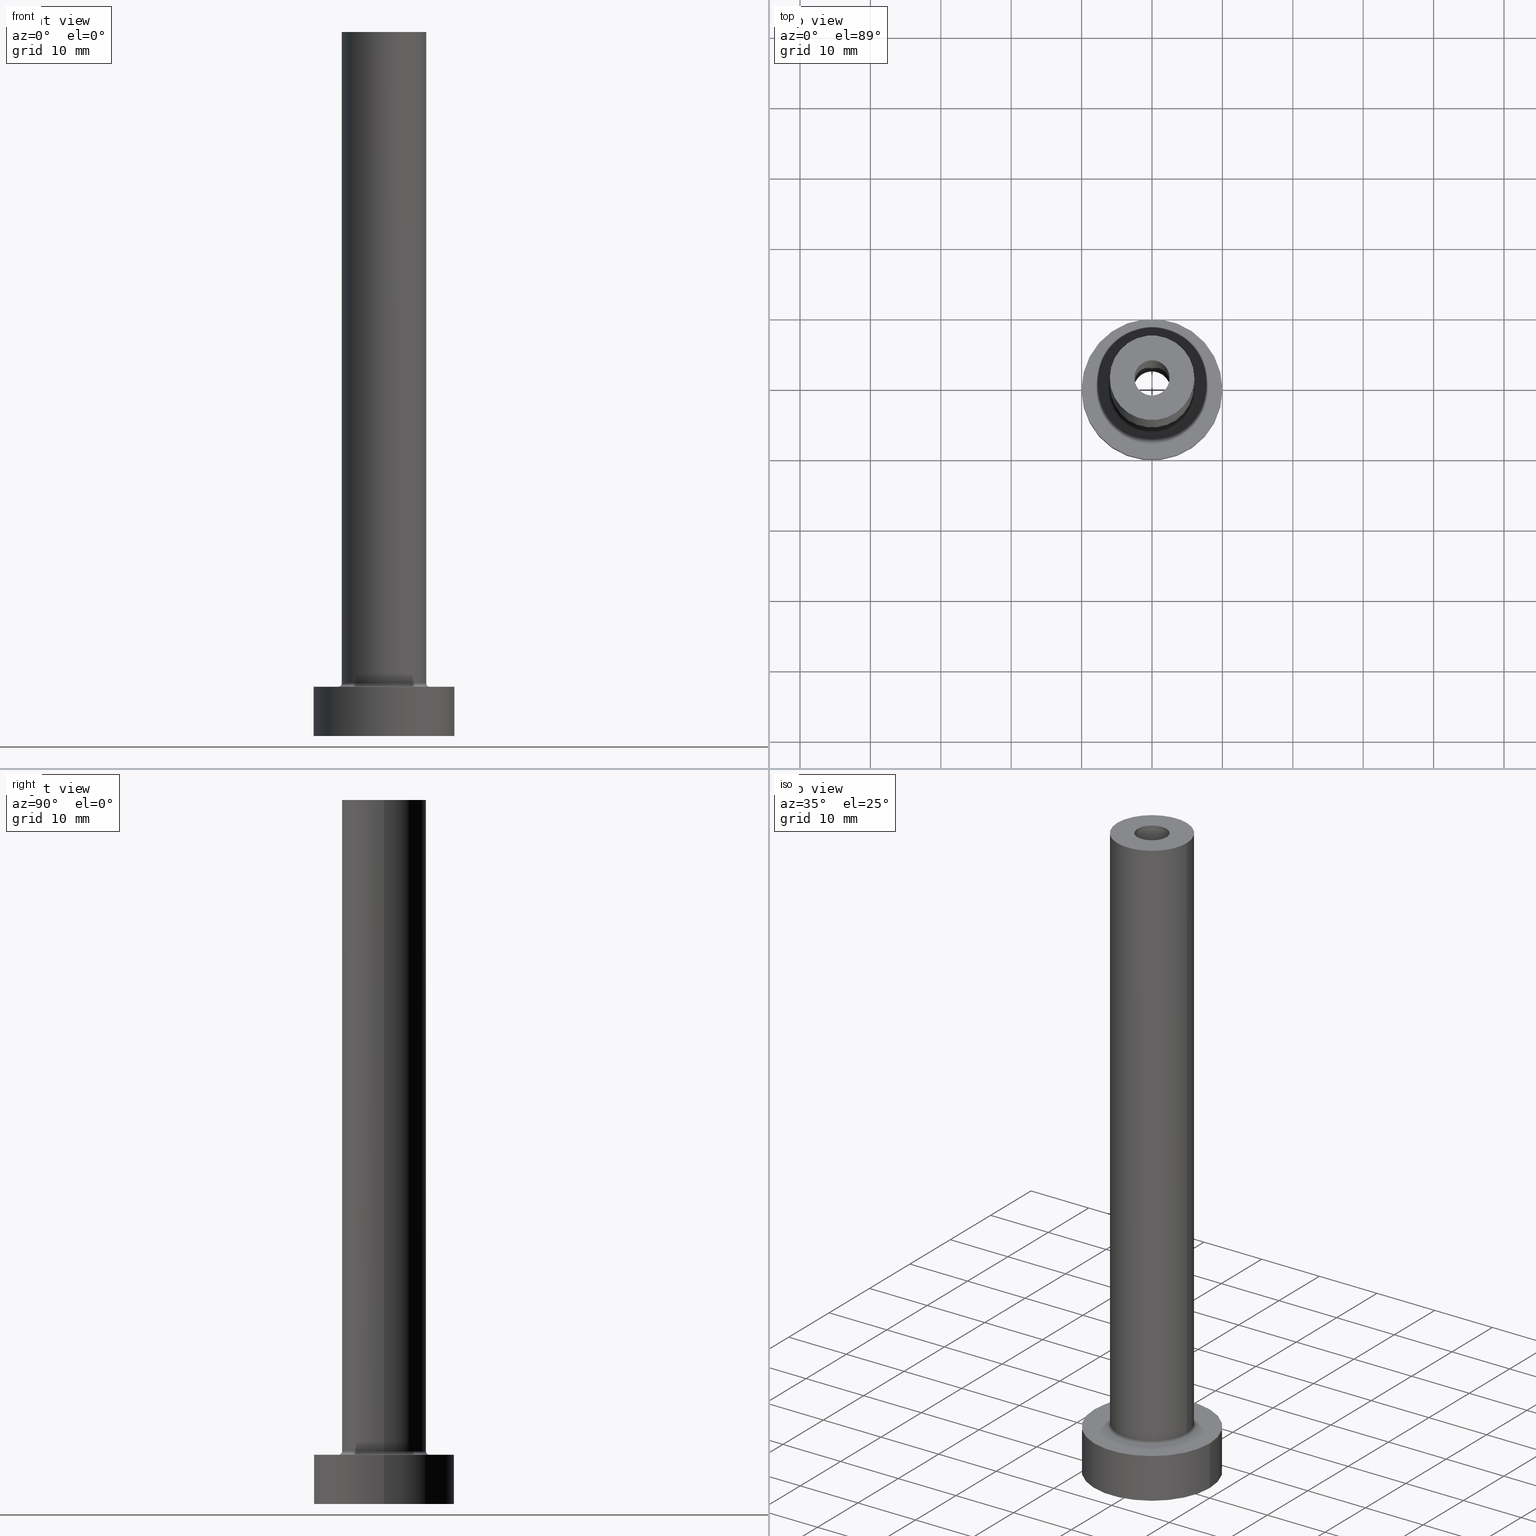
[diagram: canonical four-view strip — front | top / right | iso, engineering-drawing reading convention]
A machine part, canonical four-view strip (front | top / right | iso — engineering-drawing reading convention). The complete STEP part file that produces these views, byte-faithful:
ISO-10303-21;
HEADER;
FILE_DESCRIPTION (( 'STEP AP203' ),
    '1' );
FILE_NAME ('3dc9.STEP',
    '2023-02-13T16:48:22',
    ( '' ),
    ( '' ),
    'SwSTEP 2.0',
    'SolidWorks 2019',
    '' );
FILE_SCHEMA (( 'CONFIG_CONTROL_DESIGN' ));
ENDSEC;

DATA;
#1 = AXIS2_PLACEMENT_3D ( 'NONE', #263, #406, #91 ) ;
#2 = DIRECTION ( 'NONE',  ( -1.000000000000000000, 0.000000000000000000, 0.000000000000000000 ) ) ;
#3 = ORIENTED_EDGE ( 'NONE', *, *, #11, .T. ) ;
#4 = CARTESIAN_POINT ( 'NONE',  ( 0.000000000000000000, 0.000000000000000000, 100.0000000000000000 ) ) ;
#5 = DIRECTION ( 'NONE',  ( 0.000000000000000000, 0.000000000000000000, 1.000000000000000000 ) ) ;
#6 = CARTESIAN_POINT ( 'NONE',  ( 0.000000000000000000, 0.000000000000000000, 100.0000000000000000 ) ) ;
#7 = ORIENTED_EDGE ( 'NONE', *, *, #129, .T. ) ;
#8 = CARTESIAN_POINT ( 'NONE',  ( 0.000000000000000000, 0.000000000000000000, 0.000000000000000000 ) ) ;
#9 = CARTESIAN_POINT ( 'NONE',  ( -2.500000000000000000, 0.000000000000000000, 55.00000000000000711 ) ) ;
#10 = CARTESIAN_POINT ( 'NONE',  ( 2.500000000000000000, 3.061616997868382648E-16, 100.0000000000000000 ) ) ;
#11 = EDGE_CURVE ( 'NONE', #68, #359, #260, .T. ) ;
#12 = DIRECTION ( 'NONE',  ( 0.000000000000000000, 0.000000000000000000, 1.000000000000000000 ) ) ;
#13 = EDGE_LOOP ( 'NONE', ( #177, #167, #115, #7 ) ) ;
#14 = DIRECTION ( 'NONE',  ( -0.000000000000000000, -0.000000000000000000, -1.000000000000000000 ) ) ;
#15 = ORIENTED_EDGE ( 'NONE', *, *, #187, .F. ) ;
#16 = EDGE_LOOP ( 'NONE', ( #15, #282, #206, #173 ) ) ;
#17 = EDGE_LOOP ( 'NONE', ( #355, #279, #275, #370 ) ) ;
#18 = CARTESIAN_POINT ( 'NONE',  ( 0.000000000000000000, 0.000000000000000000, 0.000000000000000000 ) ) ;
#19 = EDGE_LOOP ( 'NONE', ( #138, #133, #394, #75 ) ) ;
#20 = EDGE_LOOP ( 'NONE', ( #212, #117 ) ) ;
#21 = CALENDAR_DATE ( 2023, 13, 2 ) ;
#22 = ORGANIZATION ( 'NEUR�EN�', 'NEUR�EN�', '' ) ;
#23 = PERSON_AND_ORGANIZATION ( #32, #22 ) ;
#24 = CARTESIAN_POINT ( 'NONE',  ( 0.000000000000000000, 0.000000000000000000, 7.000000000000000000 ) ) ;
#25 = APPROVAL ( #335, 'NEUR�EN�' ) ;
#26 = CARTESIAN_POINT ( 'NONE',  ( 0.000000000000000000, 0.000000000000000000, 7.500000000000007105 ) ) ;
#27 = AXIS2_PLACEMENT_3D ( 'NONE', #179, #5, #283 ) ;
#28 = DIRECTION ( 'NONE',  ( 0.000000000000000000, 0.000000000000000000, 1.000000000000000000 ) ) ;
#29 = APPROVAL ( #269, 'NEUR�EN�' ) ;
#30 = CARTESIAN_POINT ( 'NONE',  ( 0.000000000000000000, 0.000000000000000000, 7.000000000000000000 ) ) ;
#31 = APPROVAL_ROLE ( '' ) ;
#32 = PERSON ( 'NEUR�EN�', 'NEUR�EN�', 'NEUR�EN�', ('NEUR�EN�'), ('NEUR�EN�'), ('NEUR�EN�') ) ;
#33 = AXIS2_PLACEMENT_3D ( 'NONE', #46, #428, #258 ) ;
#34 = PRODUCT_DEFINITION_SHAPE ( 'NONE', 'NONE',  #276 ) ;
#35 = ADVANCED_FACE ( 'NONE', ( #104, #363 ), #45, .F. ) ;
#36 = EDGE_LOOP ( 'NONE', ( #111, #253 ) ) ;
#37 = AXIS2_PLACEMENT_3D ( 'NONE', #324, #392, #434 ) ;
#38 = FACE_BOUND ( 'NONE', #316, .T. ) ;
#39 = ORIENTED_EDGE ( 'NONE', *, *, #139, .T. ) ;
#40 = ADVANCED_FACE ( 'NONE', ( #292, #290 ), #242, .T. ) ;
#41 = DIRECTION ( 'NONE',  ( 1.000000000000000000, 0.000000000000000000, 0.000000000000000000 ) ) ;
#42 = EDGE_LOOP ( 'NONE', ( #402, #404 ) ) ;
#43 = CYLINDRICAL_SURFACE ( 'NONE', #168, 2.649999999999999911 ) ;
#44 = LINE ( 'NONE', #109, #377 ) ;
#45 = PLANE ( 'NONE',  #432 ) ;
#46 = CARTESIAN_POINT ( 'NONE',  ( 0.000000000000000000, 0.000000000000000000, 100.0000000000000000 ) ) ;
#47 = AXIS2_PLACEMENT_3D ( 'NONE', #364, #371, #81 ) ;
#48 = CARTESIAN_POINT ( 'NONE',  ( 10.00000000000000000, 1.224646799147353256E-15, 0.000000000000000000 ) ) ;
#49 = VERTEX_POINT ( 'NONE', #9 ) ;
#50 = ORIENTED_EDGE ( 'NONE', *, *, #123, .T. ) ;
#51 = CARTESIAN_POINT ( 'NONE',  ( 10.00000000000000000, 1.224646799147353256E-15, 7.000000000000000000 ) ) ;
#52 = VERTEX_POINT ( 'NONE', #215 ) ;
#53 = EDGE_CURVE ( 'NONE', #121, #387, #427, .T. ) ;
#54 = VERTEX_POINT ( 'NONE', #440 ) ;
#55 = PERSON_AND_ORGANIZATION ( #32, #22 ) ;
#56 = DIRECTION ( 'NONE',  ( 0.000000000000000000, 0.000000000000000000, -1.000000000000000000 ) ) ;
#57 = DATE_AND_TIME ( #145, #71 ) ;
#58 = FACE_OUTER_BOUND ( 'NONE', #218, .T. ) ;
#59 = VECTOR ( 'NONE', #202, 1000.000000000000000 ) ;
#60 = CC_DESIGN_APPROVAL ( #29, ( #190 ) ) ;
#61 = ADVANCED_FACE ( 'NONE', ( #38, #172 ), #435, .T. ) ;
#62 = PERSON_AND_ORGANIZATION ( #32, #22 ) ;
#63 = AXIS2_PLACEMENT_3D ( 'NONE', #26, #154, #268 ) ;
#64 = APPROVAL ( #458, 'NEUR�EN�' ) ;
#65 = AXIS2_PLACEMENT_3D ( 'NONE', #453, #158, #305 ) ;
#66 = CC_DESIGN_PERSON_AND_ORGANIZATION_ASSIGNMENT ( #445, #152, ( #190 ) ) ;
#67 = CIRCLE ( 'NONE', #329, 2.500000000000000000 ) ;
#68 = VERTEX_POINT ( 'NONE', #166 ) ;
#69 = ADVANCED_FACE ( 'NONE', ( #390 ), #319, .T. ) ;
#70 = ORIENTED_EDGE ( 'NONE', *, *, #345, .T. ) ;
#71 = LOCAL_TIME ( 17, 48, 22.00000000000000000, #222 ) ;
#72 =( NAMED_UNIT ( * ) SI_UNIT ( $, .STERADIAN. ) SOLID_ANGLE_UNIT ( ) );
#73 = FACE_BOUND ( 'NONE', #42, .T. ) ;
#74 = DIRECTION ( 'NONE',  ( -0.000000000000000000, -0.000000000000000000, -1.000000000000000000 ) ) ;
#75 = ORIENTED_EDGE ( 'NONE', *, *, #342, .F. ) ;
#76 = CARTESIAN_POINT ( 'NONE',  ( -2.500000000000000000, 0.000000000000000000, 100.0000000000000000 ) ) ;
#77 = DIRECTION ( 'NONE',  ( 1.000000000000000000, 0.000000000000000000, -0.000000000000000000 ) ) ;
#78 = ORIENTED_EDGE ( 'NONE', *, *, #382, .F. ) ;
#79 = ORIENTED_EDGE ( 'NONE', *, *, #160, .F. ) ;
#80 = DIRECTION ( 'NONE',  ( 1.000000000000000000, 0.000000000000000000, -0.000000000000000000 ) ) ;
#81 = DIRECTION ( 'NONE',  ( 1.000000000000000000, 0.000000000000000000, 0.000000000000000000 ) ) ;
#82 = AXIS2_PLACEMENT_3D ( 'NONE', #186, #134, #210 ) ;
#83 = EDGE_CURVE ( 'NONE', #424, #214, #347, .T. ) ;
#84 = EDGE_LOOP ( 'NONE', ( #352, #142 ) ) ;
#85 = PRODUCT_RELATED_PRODUCT_CATEGORY ( 'detail', '', ( #410 ) ) ;
#86 = AXIS2_PLACEMENT_3D ( 'NONE', #30, #94, #234 ) ;
#87 = ORIENTED_EDGE ( 'NONE', *, *, #430, .F. ) ;
#88 = CYLINDRICAL_SURFACE ( 'NONE', #403, 10.00000000000000000 ) ;
#89 = APPROVAL_ROLE ( '' ) ;
#90 = EDGE_CURVE ( 'NONE', #399, #121, #358, .T. ) ;
#91 = DIRECTION ( 'NONE',  ( 1.000000000000000000, 0.000000000000000000, 0.000000000000000000 ) ) ;
#92 = MANIFOLD_SOLID_BREP ( 'Odebrat vysunut�m4', #452 ) ;
#93 = DIRECTION ( 'NONE',  ( 0.000000000000000000, 0.000000000000000000, 1.000000000000000000 ) ) ;
#94 = DIRECTION ( 'NONE',  ( -0.000000000000000000, -0.000000000000000000, -1.000000000000000000 ) ) ;
#95 = CARTESIAN_POINT ( 'NONE',  ( -6.500000000000000888, 7.960204194457796463E-16, 7.500000000000007105 ) ) ;
#96 = AXIS2_PLACEMENT_3D ( 'NONE', #252, #367, #41 ) ;
#97 = DESIGN_CONTEXT ( 'detailed design', #414, 'design' ) ;
#98 = CC_DESIGN_PERSON_AND_ORGANIZATION_ASSIGNMENT ( #55, #189, ( #410 ) ) ;
#99 = CIRCLE ( 'NONE', #200, 6.500000000000000888 ) ;
#100 = DIRECTION ( 'NONE',  ( 1.000000000000000000, 0.000000000000000000, 0.000000000000000000 ) ) ;
#101 = CARTESIAN_POINT ( 'NONE',  ( -2.649999999999999911, 0.000000000000000000, 0.000000000000000000 ) ) ;
#102 = CC_DESIGN_DATE_AND_TIME_ASSIGNMENT ( #227, #122, ( #276 ) ) ;
#103 = ORIENTED_EDGE ( 'NONE', *, *, #455, .F. ) ;
#104 = FACE_BOUND ( 'NONE', #294, .T. ) ;
#105 = ORIENTED_EDGE ( 'NONE', *, *, #90, .T. ) ;
#106 = LOCAL_TIME ( 17, 48, 22.00000000000000000, #221 ) ;
#107 = ORIENTED_EDGE ( 'NONE', *, *, #455, .T. ) ;
#108 = DIRECTION ( 'NONE',  ( 1.000000000000000000, 0.000000000000000000, 0.000000000000000000 ) ) ;
#109 = CARTESIAN_POINT ( 'NONE',  ( 2.500000000000000000, 3.061616997868382648E-16, 100.0000000000000000 ) ) ;
#110 = AXIS2_PLACEMENT_3D ( 'NONE', #398, #12, #181 ) ;
#111 = ORIENTED_EDGE ( 'NONE', *, *, #309, .F. ) ;
#112 = CARTESIAN_POINT ( 'NONE',  ( -6.500000000000000888, 7.960204194457796463E-16, 7.000000000000002665 ) ) ;
#113 = ORIENTED_EDGE ( 'NONE', *, *, #187, .T. ) ;
#114 = CC_DESIGN_DATE_AND_TIME_ASSIGNMENT ( #380, #195, ( #315 ) ) ;
#115 = ORIENTED_EDGE ( 'NONE', *, *, #342, .T. ) ;
#116 = FACE_OUTER_BOUND ( 'NONE', #164, .T. ) ;
#117 = ORIENTED_EDGE ( 'NONE', *, *, #196, .T. ) ;
#118 = ORIENTED_EDGE ( 'NONE', *, *, #157, .F. ) ;
#119 = CARTESIAN_POINT ( 'NONE',  ( -6.000000000000000888, 0.000000000000000000, 7.500000000000007105 ) ) ;
#120 = AXIS2_PLACEMENT_3D ( 'NONE', #265, #375, #144 ) ;
#121 = VERTEX_POINT ( 'NONE', #362 ) ;
#122 = DATE_TIME_ROLE ( 'creation_date' ) ;
#123 = EDGE_CURVE ( 'NONE', #426, #52, #44, .T. ) ;
#124 = SECURITY_CLASSIFICATION_LEVEL ( 'unclassified' ) ;
#125 = DIRECTION ( 'NONE',  ( 0.000000000000000000, 0.000000000000000000, -1.000000000000000000 ) ) ;
#126 = CIRCLE ( 'NONE', #120, 10.00000000000000000 ) ;
#127 = EDGE_CURVE ( 'NONE', #391, #255, #327, .T. ) ;
#128 = CARTESIAN_POINT ( 'NONE',  ( 0.000000000000000000, 0.000000000000000000, 0.000000000000000000 ) ) ;
#129 = EDGE_CURVE ( 'NONE', #286, #54, #318, .T. ) ;
#130 = ORIENTED_EDGE ( 'NONE', *, *, #180, .F. ) ;
#131 = DIRECTION ( 'NONE',  ( 0.000000000000000000, 0.000000000000000000, 1.000000000000000000 ) ) ;
#132 = ORIENTED_EDGE ( 'NONE', *, *, #298, .T. ) ;
#133 = ORIENTED_EDGE ( 'NONE', *, *, #317, .T. ) ;
#134 = DIRECTION ( 'NONE',  ( 0.000000000000000000, 0.000000000000000000, -1.000000000000000000 ) ) ;
#135 = AXIS2_PLACEMENT_3D ( 'NONE', #128, #419, #308 ) ;
#136 = ORIENTED_EDGE ( 'NONE', *, *, #129, .F. ) ;
#137 = CARTESIAN_POINT ( 'NONE',  ( -10.00000000000000000, 0.000000000000000000, 7.000000000000000000 ) ) ;
#138 = ORIENTED_EDGE ( 'NONE', *, *, #284, .T. ) ;
#139 = EDGE_CURVE ( 'NONE', #442, #359, #201, .T. ) ;
#140 = DIRECTION ( 'NONE',  ( 0.000000000000000000, 0.000000000000000000, 1.000000000000000000 ) ) ;
#141 = FACE_OUTER_BOUND ( 'NONE', #400, .T. ) ;
#142 = ORIENTED_EDGE ( 'NONE', *, *, #83, .F. ) ;
#143 = CARTESIAN_POINT ( 'NONE',  ( 6.500000000000000888, 0.000000000000000000, 7.500000000000007105 ) ) ;
#144 = DIRECTION ( 'NONE',  ( 1.000000000000000000, 0.000000000000000000, 0.000000000000000000 ) ) ;
#145 = CALENDAR_DATE ( 2023, 13, 2 ) ;
#146 = EDGE_CURVE ( 'NONE', #387, #442, #171, .T. ) ;
#147 = CIRCLE ( 'NONE', #449, 6.000000000000000888 ) ;
#148 = APPROVAL_ROLE ( '' ) ;
#149 = MECHANICAL_CONTEXT ( 'NONE', #385, 'mechanical' ) ;
#150 = CALENDAR_DATE ( 2023, 13, 2 ) ;
#151 = DIRECTION ( 'NONE',  ( 0.000000000000000000, 0.000000000000000000, -1.000000000000000000 ) ) ;
#152 = PERSON_AND_ORGANIZATION_ROLE ( 'design_supplier' ) ;
#153 = DIRECTION ( 'NONE',  ( -0.000000000000000000, -0.000000000000000000, -1.000000000000000000 ) ) ;
#154 = DIRECTION ( 'NONE',  ( 0.000000000000000000, 0.000000000000000000, 1.000000000000000000 ) ) ;
#155 = FACE_OUTER_BOUND ( 'NONE', #84, .T. ) ;
#156 = AXIS2_PLACEMENT_3D ( 'NONE', #8, #239, #241 ) ;
#157 = EDGE_CURVE ( 'NONE', #426, #174, #67, .T. ) ;
#158 = DIRECTION ( 'NONE',  ( 0.000000000000000000, 0.000000000000000000, 1.000000000000000000 ) ) ;
#159 = SHAPE_DEFINITION_REPRESENTATION ( #34, #162 ) ;
#160 = EDGE_CURVE ( 'NONE', #174, #426, #379, .T. ) ;
#161 = AXIS2_PLACEMENT_3D ( 'NONE', #4, #131, #312 ) ;
#162 = ADVANCED_BREP_SHAPE_REPRESENTATION ( '3dc9', ( #92, #1 ), #416 ) ;
#163 = AXIS2_PLACEMENT_3D ( 'NONE', #437, #321, #80 ) ;
#164 = EDGE_LOOP ( 'NONE', ( #460, #236, #285, #130 ) ) ;
#165 = DIRECTION ( 'NONE',  ( 1.000000000000000000, 0.000000000000000000, 0.000000000000000000 ) ) ;
#166 = CARTESIAN_POINT ( 'NONE',  ( 6.000000000000000888, 7.347880794884119736E-16, 7.500000000000007105 ) ) ;
#167 = ORIENTED_EDGE ( 'NONE', *, *, #83, .T. ) ;
#168 = AXIS2_PLACEMENT_3D ( 'NONE', #176, #170, #2 ) ;
#169 = ADVANCED_FACE ( 'NONE', ( #313 ), #43, .F. ) ;
#170 = DIRECTION ( 'NONE',  ( 0.000000000000000000, 0.000000000000000000, -1.000000000000000000 ) ) ;
#171 = CIRCLE ( 'NONE', #348, 0.5000000000000004441 ) ;
#172 = FACE_OUTER_BOUND ( 'NONE', #333, .T. ) ;
#173 = ORIENTED_EDGE ( 'NONE', *, *, #328, .T. ) ;
#174 = VERTEX_POINT ( 'NONE', #393 ) ;
#175 = FACE_OUTER_BOUND ( 'NONE', #16, .T. ) ;
#176 = CARTESIAN_POINT ( 'NONE',  ( 0.000000000000000000, 0.000000000000000000, 62.49533188057741739 ) ) ;
#177 = ORIENTED_EDGE ( 'NONE', *, *, #317, .F. ) ;
#178 = CARTESIAN_POINT ( 'NONE',  ( 6.000000000000000888, 7.347880794884119736E-16, 100.0000000000000000 ) ) ;
#179 = CARTESIAN_POINT ( 'NONE',  ( 0.000000000000000000, 0.000000000000000000, 55.00000000000000711 ) ) ;
#180 = EDGE_CURVE ( 'NONE', #52, #49, #443, .T. ) ;
#181 = DIRECTION ( 'NONE',  ( 1.000000000000000000, 0.000000000000000000, 0.000000000000000000 ) ) ;
#182 = EDGE_LOOP ( 'NONE', ( #360, #396, #3, #240 ) ) ;
#183 = AXIS2_PLACEMENT_3D ( 'NONE', #350, #246, #165 ) ;
#184 = CARTESIAN_POINT ( 'NONE',  ( -2.649999999999999911, 0.000000000000000000, 55.00000000000000711 ) ) ;
#185 = CARTESIAN_POINT ( 'NONE',  ( -6.000000000000000888, 0.000000000000000000, 100.0000000000000000 ) ) ;
#186 = CARTESIAN_POINT ( 'NONE',  ( 0.000000000000000000, 0.000000000000000000, 62.49533188057741739 ) ) ;
#187 = EDGE_CURVE ( 'NONE', #399, #68, #425, .T. ) ;
#188 = ORIENTED_EDGE ( 'NONE', *, *, #373, .F. ) ;
#189 = PERSON_AND_ORGANIZATION_ROLE ( 'design_owner' ) ;
#190 = PRODUCT_DEFINITION_FORMATION_WITH_SPECIFIED_SOURCE ( 'LIBOVOLN�', '', #410, .NOT_KNOWN. ) ;
#191 = CYLINDRICAL_SURFACE ( 'NONE', #230, 10.00000000000000000 ) ;
#192 = DIRECTION ( 'NONE',  ( -0.000000000000000000, -0.000000000000000000, -1.000000000000000000 ) ) ;
#193 = CC_DESIGN_PERSON_AND_ORGANIZATION_ASSIGNMENT ( #299, #447, ( #315 ) ) ;
#194 = CIRCLE ( 'NONE', #156, 10.00000000000000000 ) ;
#195 = DATE_TIME_ROLE ( 'classification_date' ) ;
#196 = EDGE_CURVE ( 'NONE', #433, #391, #126, .T. ) ;
#197 = CARTESIAN_POINT ( 'NONE',  ( 0.000000000000000000, 0.000000000000000000, 100.0000000000000000 ) ) ;
#198 = CARTESIAN_POINT ( 'NONE',  ( 0.000000000000000000, 0.000000000000000000, 55.00000000000000711 ) ) ;
#199 = UNCERTAINTY_MEASURE_WITH_UNIT (LENGTH_MEASURE( 1.000000000000000082E-05 ), #361, 'distance_accuracy_value', 'NONE');
#200 = AXIS2_PLACEMENT_3D ( 'NONE', #346, #237, #311 ) ;
#201 = CIRCLE ( 'NONE', #86, 6.500000000000000888 ) ;
#202 = DIRECTION ( 'NONE',  ( 0.000000000000000000, 0.000000000000000000, -1.000000000000000000 ) ) ;
#203 = ADVANCED_FACE ( 'NONE', ( #58 ), #191, .T. ) ;
#204 = CARTESIAN_POINT ( 'NONE',  ( 0.000000000000000000, 0.000000000000000000, 100.0000000000000000 ) ) ;
#205 = ORIENTED_EDGE ( 'NONE', *, *, #127, .F. ) ;
#206 = ORIENTED_EDGE ( 'NONE', *, *, #53, .T. ) ;
#207 = DIRECTION ( 'NONE',  ( -1.000000000000000000, 0.000000000000000000, 0.000000000000000000 ) ) ;
#208 = ADVANCED_FACE ( 'NONE', ( #116 ), #213, .F. ) ;
#209 = VERTEX_POINT ( 'NONE', #48 ) ;
#210 = DIRECTION ( 'NONE',  ( -1.000000000000000000, 0.000000000000000000, 0.000000000000000000 ) ) ;
#211 = LINE ( 'NONE', #251, #59 ) ;
#212 = ORIENTED_EDGE ( 'NONE', *, *, #382, .T. ) ;
#213 = CYLINDRICAL_SURFACE ( 'NONE', #288, 2.500000000000000000 ) ;
#214 = VERTEX_POINT ( 'NONE', #184 ) ;
#215 = CARTESIAN_POINT ( 'NONE',  ( 2.500000000000000000, 3.061616997868382648E-16, 55.00000000000000711 ) ) ;
#216 = LINE ( 'NONE', #331, #277 ) ;
#217 = CYLINDRICAL_SURFACE ( 'NONE', #429, 2.500000000000000000 ) ;
#218 = EDGE_LOOP ( 'NONE', ( #368, #107, #436, #205 ) ) ;
#219 = APPLICATION_PROTOCOL_DEFINITION ( 'international standard', 'config_control_design', 1994, #385 ) ;
#220 = CARTESIAN_POINT ( 'NONE',  ( 0.000000000000000000, 0.000000000000000000, 7.000000000000000000 ) ) ;
#221 = COORDINATED_UNIVERSAL_TIME_OFFSET ( 1, 0, .AHEAD. ) ;
#222 = COORDINATED_UNIVERSAL_TIME_OFFSET ( 1, 0, .AHEAD. ) ;
#223 = PERSON_AND_ORGANIZATION_ROLE ( 'creator' ) ;
#224 = DIRECTION ( 'NONE',  ( -0.000000000000000000, -0.000000000000000000, -1.000000000000000000 ) ) ;
#225 = TOROIDAL_SURFACE ( 'NONE', #369, 6.500000000000000888, 0.5000000000000000000 ) ;
#226 = LOCAL_TIME ( 17, 48, 22.00000000000000000, #417 ) ;
#227 = DATE_AND_TIME ( #150, #270 ) ;
#228 = ADVANCED_FACE ( 'NONE', ( #141 ), #217, .F. ) ;
#229 = DIRECTION ( 'NONE',  ( 1.000000000000000000, 0.000000000000000000, 0.000000000000000000 ) ) ;
#230 = AXIS2_PLACEMENT_3D ( 'NONE', #24, #153, #300 ) ;
#231 = DIRECTION ( 'NONE',  ( -1.000000000000000000, 1.224646799147351482E-16, 0.000000000000000000 ) ) ;
#232 = APPROVAL_DATE_TIME ( #306, #64 ) ;
#233 = ADVANCED_FACE ( 'NONE', ( #431 ), #336, .F. ) ;
#234 = DIRECTION ( 'NONE',  ( 1.000000000000000000, 0.000000000000000000, 0.000000000000000000 ) ) ;
#235 = CIRCLE ( 'NONE', #47, 6.000000000000000888 ) ;
#236 = ORIENTED_EDGE ( 'NONE', *, *, #157, .T. ) ;
#237 = DIRECTION ( 'NONE',  ( -0.000000000000000000, -0.000000000000000000, -1.000000000000000000 ) ) ;
#238 = ADVANCED_FACE ( 'NONE', ( #446 ), #225, .F. ) ;
#239 = DIRECTION ( 'NONE',  ( 0.000000000000000000, 0.000000000000000000, 1.000000000000000000 ) ) ;
#240 = ORIENTED_EDGE ( 'NONE', *, *, #139, .F. ) ;
#241 = DIRECTION ( 'NONE',  ( 1.000000000000000000, 0.000000000000000000, 0.000000000000000000 ) ) ;
#242 = PLANE ( 'NONE',  #163 ) ;
#243 = DIRECTION ( 'NONE',  ( -1.000000000000000000, 0.000000000000000000, 0.000000000000000000 ) ) ;
#244 = AXIS2_PLACEMENT_3D ( 'NONE', #198, #301, #456 ) ;
#245 = DIRECTION ( 'NONE',  ( -0.000000000000000000, -0.000000000000000000, -1.000000000000000000 ) ) ;
#246 = DIRECTION ( 'NONE',  ( 0.000000000000000000, 0.000000000000000000, 1.000000000000000000 ) ) ;
#247 = VECTOR ( 'NONE', #245, 1000.000000000000000 ) ;
#248 = CARTESIAN_POINT ( 'NONE',  ( -10.00000000000000000, 0.000000000000000000, 7.000000000000000000 ) ) ;
#249 = ORIENTED_EDGE ( 'NONE', *, *, #127, .T. ) ;
#250 = FACE_OUTER_BOUND ( 'NONE', #13, .T. ) ;
#251 = CARTESIAN_POINT ( 'NONE',  ( -2.649999999999999911, 0.000000000000000000, 62.49533188057741739 ) ) ;
#252 = CARTESIAN_POINT ( 'NONE',  ( 0.000000000000000000, 0.000000000000000000, 55.00000000000000711 ) ) ;
#253 = ORIENTED_EDGE ( 'NONE', *, *, #266, .F. ) ;
#254 =( NAMED_UNIT ( * ) PLANE_ANGLE_UNIT ( ) SI_UNIT ( $, .RADIAN. ) );
#255 = VERTEX_POINT ( 'NONE', #413 ) ;
#256 = CIRCLE ( 'NONE', #383, 10.00000000000000000 ) ;
#257 = ORIENTED_EDGE ( 'NONE', *, *, #53, .F. ) ;
#258 = DIRECTION ( 'NONE',  ( -1.000000000000000000, 0.000000000000000000, 0.000000000000000000 ) ) ;
#259 = CC_DESIGN_PERSON_AND_ORGANIZATION_ASSIGNMENT ( #407, #338, ( #276 ) ) ;
#260 = CIRCLE ( 'NONE', #459, 0.5000000000000004441 ) ;
#261 = PERSON_AND_ORGANIZATION ( #32, #22 ) ;
#262 = CARTESIAN_POINT ( 'NONE',  ( 6.000000000000000888, 7.347880794884119736E-16, 100.0000000000000000 ) ) ;
#263 = CARTESIAN_POINT ( 'NONE',  ( 0.000000000000000000, 0.000000000000000000, 0.000000000000000000 ) ) ;
#264 = COORDINATED_UNIVERSAL_TIME_OFFSET ( 1, 0, .AHEAD. ) ;
#265 = CARTESIAN_POINT ( 'NONE',  ( 0.000000000000000000, 0.000000000000000000, 7.000000000000000000 ) ) ;
#266 = EDGE_CURVE ( 'NONE', #209, #255, #256, .T. ) ;
#267 = CIRCLE ( 'NONE', #65, 2.649999999999999911 ) ;
#268 = DIRECTION ( 'NONE',  ( 1.000000000000000000, 0.000000000000000000, 0.000000000000000000 ) ) ;
#269 = APPROVAL_STATUS ( 'not_yet_approved' ) ;
#270 = LOCAL_TIME ( 17, 48, 22.00000000000000000, #264 ) ;
#271 = APPROVAL_PERSON_ORGANIZATION ( #261, #25, #89 ) ;
#272 = PERSON_AND_ORGANIZATION ( #32, #22 ) ;
#273 = CARTESIAN_POINT ( 'NONE',  ( 0.000000000000000000, 0.000000000000000000, 7.000000000000000000 ) ) ;
#274 = DIRECTION ( 'NONE',  ( -1.000000000000000000, 0.000000000000000000, 0.000000000000000000 ) ) ;
#275 = ORIENTED_EDGE ( 'NONE', *, *, #298, .F. ) ;
#276 = PRODUCT_DEFINITION ( 'NEZN�M�', '', #190, #97 ) ;
#277 = VECTOR ( 'NONE', #293, 1000.000000000000000 ) ;
#278 = CARTESIAN_POINT ( 'NONE',  ( 0.000000000000000000, 0.000000000000000000, 0.000000000000000000 ) ) ;
#279 = ORIENTED_EDGE ( 'NONE', *, *, #146, .T. ) ;
#280 = VECTOR ( 'NONE', #14, 1000.000000000000000 ) ;
#281 = CARTESIAN_POINT ( 'NONE',  ( 6.500000000000000888, 0.000000000000000000, 7.000000000000002665 ) ) ;
#282 = ORIENTED_EDGE ( 'NONE', *, *, #345, .F. ) ;
#283 = DIRECTION ( 'NONE',  ( 1.000000000000000000, 0.000000000000000000, 0.000000000000000000 ) ) ;
#284 = EDGE_CURVE ( 'NONE', #214, #424, #267, .T. ) ;
#285 = ORIENTED_EDGE ( 'NONE', *, *, #423, .T. ) ;
#286 = VERTEX_POINT ( 'NONE', #101 ) ;
#287 = DIRECTION ( 'NONE',  ( -0.000000000000000000, -0.000000000000000000, -1.000000000000000000 ) ) ;
#288 = AXIS2_PLACEMENT_3D ( 'NONE', #448, #125, #365 ) ;
#289 = APPROVAL_PERSON_ORGANIZATION ( #272, #64, #31 ) ;
#290 = FACE_OUTER_BOUND ( 'NONE', #20, .T. ) ;
#291 = EDGE_LOOP ( 'NONE', ( #323, #113, #349, #257 ) ) ;
#292 = FACE_BOUND ( 'NONE', #334, .T. ) ;
#293 = DIRECTION ( 'NONE',  ( -0.000000000000000000, -0.000000000000000000, -1.000000000000000000 ) ) ;
#294 = EDGE_LOOP ( 'NONE', ( #136, #188 ) ) ;
#295 = DIRECTION ( 'NONE',  ( 0.000000000000000000, -1.000000000000000000, 0.000000000000000000 ) ) ;
#296 = APPROVAL_DATE_TIME ( #303, #29 ) ;
#297 = AXIS2_PLACEMENT_3D ( 'NONE', #204, #351, #77 ) ;
#298 = EDGE_CURVE ( 'NONE', #359, #442, #99, .T. ) ;
#299 = PERSON_AND_ORGANIZATION ( #32, #22 ) ;
#300 = DIRECTION ( 'NONE',  ( -1.000000000000000000, 0.000000000000000000, 0.000000000000000000 ) ) ;
#301 = DIRECTION ( 'NONE',  ( 0.000000000000000000, 0.000000000000000000, 1.000000000000000000 ) ) ;
#302 = VECTOR ( 'NONE', #322, 1000.000000000000000 ) ;
#303 = DATE_AND_TIME ( #21, #106 ) ;
#304 = AXIS2_PLACEMENT_3D ( 'NONE', #6, #74, #207 ) ;
#305 = DIRECTION ( 'NONE',  ( 1.000000000000000000, 0.000000000000000000, 0.000000000000000000 ) ) ;
#306 = DATE_AND_TIME ( #454, #226 ) ;
#307 = CC_DESIGN_SECURITY_CLASSIFICATION ( #315, ( #190 ) ) ;
#308 = DIRECTION ( 'NONE',  ( 1.000000000000000000, 0.000000000000000000, 0.000000000000000000 ) ) ;
#309 = EDGE_CURVE ( 'NONE', #255, #209, #194, .T. ) ;
#310 = ORIENTED_EDGE ( 'NONE', *, *, #309, .T. ) ;
#311 = DIRECTION ( 'NONE',  ( 1.000000000000000000, 0.000000000000000000, 0.000000000000000000 ) ) ;
#312 = DIRECTION ( 'NONE',  ( 1.000000000000000000, 0.000000000000000000, 0.000000000000000000 ) ) ;
#313 = FACE_OUTER_BOUND ( 'NONE', #19, .T. ) ;
#314 = VECTOR ( 'NONE', #224, 1000.000000000000000 ) ;
#315 = SECURITY_CLASSIFICATION ( '', '', #124 ) ;
#316 = EDGE_LOOP ( 'NONE', ( #79, #118 ) ) ;
#317 = EDGE_CURVE ( 'NONE', #424, #54, #420, .T. ) ;
#318 = CIRCLE ( 'NONE', #412, 2.649999999999999911 ) ;
#319 = CYLINDRICAL_SURFACE ( 'NONE', #304, 6.000000000000000888 ) ;
#320 = EDGE_LOOP ( 'NONE', ( #103, #78, #249, #310 ) ) ;
#321 = DIRECTION ( 'NONE',  ( 0.000000000000000000, 0.000000000000000000, 1.000000000000000000 ) ) ;
#322 = DIRECTION ( 'NONE',  ( 0.000000000000000000, 0.000000000000000000, -1.000000000000000000 ) ) ;
#323 = ORIENTED_EDGE ( 'NONE', *, *, #90, .F. ) ;
#324 = CARTESIAN_POINT ( 'NONE',  ( 0.000000000000000000, 0.000000000000000000, 55.00000000000000711 ) ) ;
#325 = DIRECTION ( 'NONE',  ( 0.000000000000000000, 0.000000000000000000, -1.000000000000000000 ) ) ;
#326 = CIRCLE ( 'NONE', #422, 10.00000000000000000 ) ;
#327 = LINE ( 'NONE', #248, #280 ) ;
#328 = EDGE_CURVE ( 'NONE', #387, #68, #147, .T. ) ;
#329 = AXIS2_PLACEMENT_3D ( 'NONE', #197, #343, #108 ) ;
#330 = DIRECTION ( 'NONE',  ( 0.000000000000000000, 0.000000000000000000, -1.000000000000000000 ) ) ;
#331 = CARTESIAN_POINT ( 'NONE',  ( 10.00000000000000000, 1.224646799147353256E-15, 7.000000000000000000 ) ) ;
#332 = CARTESIAN_POINT ( 'NONE',  ( 0.000000000000000000, 0.000000000000000000, 100.0000000000000000 ) ) ;
#333 = EDGE_LOOP ( 'NONE', ( #70, #105 ) ) ;
#334 = EDGE_LOOP ( 'NONE', ( #132, #39 ) ) ;
#335 = APPROVAL_STATUS ( 'not_yet_approved' ) ;
#336 = TOROIDAL_SURFACE ( 'NONE', #63, 6.500000000000000888, 0.5000000000000000000 ) ;
#337 = CC_DESIGN_PERSON_AND_ORGANIZATION_ASSIGNMENT ( #62, #223, ( #190 ) ) ;
#338 = PERSON_AND_ORGANIZATION_ROLE ( 'creator' ) ;
#339 = DIRECTION ( 'NONE',  ( 1.000000000000000000, 0.000000000000000000, 0.000000000000000000 ) ) ;
#340 = CIRCLE ( 'NONE', #161, 6.000000000000000888 ) ;
#341 = CARTESIAN_POINT ( 'NONE',  ( 0.000000000000000000, 0.000000000000000000, 0.000000000000000000 ) ) ;
#342 = EDGE_CURVE ( 'NONE', #214, #286, #211, .T. ) ;
#343 = DIRECTION ( 'NONE',  ( 0.000000000000000000, 0.000000000000000000, 1.000000000000000000 ) ) ;
#344 = CIRCLE ( 'NONE', #135, 2.649999999999999911 ) ;
#345 = EDGE_CURVE ( 'NONE', #121, #399, #340, .T. ) ;
#346 = CARTESIAN_POINT ( 'NONE',  ( 0.000000000000000000, 0.000000000000000000, 7.000000000000000000 ) ) ;
#347 = CIRCLE ( 'NONE', #96, 2.649999999999999911 ) ;
#348 = AXIS2_PLACEMENT_3D ( 'NONE', #95, #381, #231 ) ;
#349 = ORIENTED_EDGE ( 'NONE', *, *, #395, .T. ) ;
#350 = CARTESIAN_POINT ( 'NONE',  ( 0.000000000000000000, 0.000000000000000000, 100.0000000000000000 ) ) ;
#351 = DIRECTION ( 'NONE',  ( 0.000000000000000000, 0.000000000000000000, 1.000000000000000000 ) ) ;
#352 = ORIENTED_EDGE ( 'NONE', *, *, #284, .F. ) ;
#353 = CIRCLE ( 'NONE', #37, 2.500000000000000000 ) ;
#354 = LOCAL_TIME ( 17, 48, 22.00000000000000000, #411 ) ;
#355 = ORIENTED_EDGE ( 'NONE', *, *, #328, .F. ) ;
#356 = DIRECTION ( 'NONE',  ( 1.000000000000000000, 0.000000000000000000, -0.000000000000000000 ) ) ;
#357 = CARTESIAN_POINT ( 'NONE',  ( 2.649999999999999911, 3.245314017740485962E-16, 55.00000000000000711 ) ) ;
#358 = CIRCLE ( 'NONE', #110, 6.000000000000000888 ) ;
#359 = VERTEX_POINT ( 'NONE', #281 ) ;
#360 = ORIENTED_EDGE ( 'NONE', *, *, #146, .F. ) ;
#361 =( LENGTH_UNIT ( ) NAMED_UNIT ( * ) SI_UNIT ( .MILLI., .METRE. ) );
#362 = CARTESIAN_POINT ( 'NONE',  ( -6.000000000000000888, 0.000000000000000000, 100.0000000000000000 ) ) ;
#363 = FACE_OUTER_BOUND ( 'NONE', #36, .T. ) ;
#364 = CARTESIAN_POINT ( 'NONE',  ( 0.000000000000000000, 0.000000000000000000, 7.500000000000007105 ) ) ;
#365 = DIRECTION ( 'NONE',  ( -1.000000000000000000, 0.000000000000000000, 0.000000000000000000 ) ) ;
#366 = ADVANCED_FACE ( 'NONE', ( #73, #155 ), #384, .F. ) ;
#367 = DIRECTION ( 'NONE',  ( 0.000000000000000000, 0.000000000000000000, 1.000000000000000000 ) ) ;
#368 = ORIENTED_EDGE ( 'NONE', *, *, #196, .F. ) ;
#369 = AXIS2_PLACEMENT_3D ( 'NONE', #450, #93, #229 ) ;
#370 = ORIENTED_EDGE ( 'NONE', *, *, #11, .F. ) ;
#371 = DIRECTION ( 'NONE',  ( 0.000000000000000000, 0.000000000000000000, 1.000000000000000000 ) ) ;
#372 = ORIENTED_EDGE ( 'NONE', *, *, #160, .T. ) ;
#373 = EDGE_CURVE ( 'NONE', #54, #286, #344, .T. ) ;
#374 = APPLICATION_PROTOCOL_DEFINITION ( 'international standard', 'config_control_design', 1994, #414 ) ;
#375 = DIRECTION ( 'NONE',  ( 0.000000000000000000, 0.000000000000000000, 1.000000000000000000 ) ) ;
#376 = CARTESIAN_POINT ( 'NONE',  ( 2.649999999999999911, 3.245314017740485962E-16, 62.49533188057741739 ) ) ;
#377 = VECTOR ( 'NONE', #325, 1000.000000000000000 ) ;
#378 = DIRECTION ( 'NONE',  ( 1.000000000000000000, 0.000000000000000000, 0.000000000000000000 ) ) ;
#379 = CIRCLE ( 'NONE', #183, 2.500000000000000000 ) ;
#380 = DATE_AND_TIME ( #415, #354 ) ;
#381 = DIRECTION ( 'NONE',  ( 1.224646799147353207E-16, 1.000000000000000000, -0.000000000000000000 ) ) ;
#382 = EDGE_CURVE ( 'NONE', #391, #433, #326, .T. ) ;
#383 = AXIS2_PLACEMENT_3D ( 'NONE', #341, #28, #378 ) ;
#384 = PLANE ( 'NONE',  #244 ) ;
#385 = APPLICATION_CONTEXT ( 'configuration controlled 3d designs of mechanical parts and assemblies' ) ;
#386 = DIRECTION ( 'NONE',  ( 0.000000000000000000, 0.000000000000000000, 1.000000000000000000 ) ) ;
#387 = VERTEX_POINT ( 'NONE', #119 ) ;
#388 = CARTESIAN_POINT ( 'NONE',  ( 0.000000000000000000, 0.000000000000000000, 7.500000000000007105 ) ) ;
#389 = CC_DESIGN_APPROVAL ( #25, ( #276 ) ) ;
#390 = FACE_OUTER_BOUND ( 'NONE', #291, .T. ) ;
#391 = VERTEX_POINT ( 'NONE', #137 ) ;
#392 = DIRECTION ( 'NONE',  ( 0.000000000000000000, 0.000000000000000000, 1.000000000000000000 ) ) ;
#393 = CARTESIAN_POINT ( 'NONE',  ( -2.500000000000000000, 0.000000000000000000, 100.0000000000000000 ) ) ;
#394 = ORIENTED_EDGE ( 'NONE', *, *, #373, .T. ) ;
#395 = EDGE_CURVE ( 'NONE', #68, #387, #235, .T. ) ;
#396 = ORIENTED_EDGE ( 'NONE', *, *, #395, .F. ) ;
#397 = LINE ( 'NONE', #76, #302 ) ;
#398 = CARTESIAN_POINT ( 'NONE',  ( 0.000000000000000000, 0.000000000000000000, 100.0000000000000000 ) ) ;
#399 = VERTEX_POINT ( 'NONE', #178 ) ;
#400 = EDGE_LOOP ( 'NONE', ( #372, #50, #87, #439 ) ) ;
#401 = DIRECTION ( 'NONE',  ( 1.000000000000000000, 0.000000000000000000, 0.000000000000000000 ) ) ;
#402 = ORIENTED_EDGE ( 'NONE', *, *, #430, .T. ) ;
#403 = AXIS2_PLACEMENT_3D ( 'NONE', #220, #287, #243 ) ;
#404 = ORIENTED_EDGE ( 'NONE', *, *, #180, .T. ) ;
#405 = FACE_OUTER_BOUND ( 'NONE', #320, .T. ) ;
#406 = DIRECTION ( 'NONE',  ( 0.000000000000000000, 0.000000000000000000, 1.000000000000000000 ) ) ;
#407 = PERSON_AND_ORGANIZATION ( #32, #22 ) ;
#408 = VECTOR ( 'NONE', #151, 1000.000000000000000 ) ;
#409 = CC_DESIGN_APPROVAL ( #64, ( #315 ) ) ;
#410 = PRODUCT ( '3dc9', '3dc9', '', ( #149 ) ) ;
#411 = COORDINATED_UNIVERSAL_TIME_OFFSET ( 1, 0, .AHEAD. ) ;
#412 = AXIS2_PLACEMENT_3D ( 'NONE', #278, #192, #339 ) ;
#413 = CARTESIAN_POINT ( 'NONE',  ( -10.00000000000000000, 0.000000000000000000, 0.000000000000000000 ) ) ;
#414 = APPLICATION_CONTEXT ( 'configuration controlled 3d designs of mechanical parts and assemblies' ) ;
#415 = CALENDAR_DATE ( 2023, 13, 2 ) ;
#416 =( GEOMETRIC_REPRESENTATION_CONTEXT ( 3 ) GLOBAL_UNCERTAINTY_ASSIGNED_CONTEXT ( ( #199 ) ) GLOBAL_UNIT_ASSIGNED_CONTEXT ( ( #361, #254, #72 ) ) REPRESENTATION_CONTEXT ( 'NONE', 'WORKASPACE' ) );
#417 = COORDINATED_UNIVERSAL_TIME_OFFSET ( 1, 0, .AHEAD. ) ;
#418 = ADVANCED_FACE ( 'NONE', ( #175 ), #441, .T. ) ;
#419 = DIRECTION ( 'NONE',  ( -0.000000000000000000, -0.000000000000000000, -1.000000000000000000 ) ) ;
#420 = LINE ( 'NONE', #376, #408 ) ;
#421 = DIRECTION ( 'NONE',  ( 0.000000000000000000, 0.000000000000000000, 1.000000000000000000 ) ) ;
#422 = AXIS2_PLACEMENT_3D ( 'NONE', #273, #421, #401 ) ;
#423 = EDGE_CURVE ( 'NONE', #174, #49, #397, .T. ) ;
#424 = VERTEX_POINT ( 'NONE', #357 ) ;
#425 = LINE ( 'NONE', #262, #314 ) ;
#426 = VERTEX_POINT ( 'NONE', #10 ) ;
#427 = LINE ( 'NONE', #185, #247 ) ;
#428 = DIRECTION ( 'NONE',  ( -0.000000000000000000, -0.000000000000000000, -1.000000000000000000 ) ) ;
#429 = AXIS2_PLACEMENT_3D ( 'NONE', #332, #56, #274 ) ;
#430 = EDGE_CURVE ( 'NONE', #49, #52, #353, .T. ) ;
#431 = FACE_OUTER_BOUND ( 'NONE', #17, .T. ) ;
#432 = AXIS2_PLACEMENT_3D ( 'NONE', #18, #140, #356 ) ;
#433 = VERTEX_POINT ( 'NONE', #51 ) ;
#434 = DIRECTION ( 'NONE',  ( 1.000000000000000000, 0.000000000000000000, 0.000000000000000000 ) ) ;
#435 = PLANE ( 'NONE',  #297 ) ;
#436 = ORIENTED_EDGE ( 'NONE', *, *, #266, .T. ) ;
#437 = CARTESIAN_POINT ( 'NONE',  ( 0.000000000000000000, 0.000000000000000000, 7.000000000000000000 ) ) ;
#438 = CYLINDRICAL_SURFACE ( 'NONE', #82, 2.649999999999999911 ) ;
#439 = ORIENTED_EDGE ( 'NONE', *, *, #423, .F. ) ;
#440 = CARTESIAN_POINT ( 'NONE',  ( 2.649999999999999911, 3.245314017740485962E-16, 0.000000000000000000 ) ) ;
#441 = CYLINDRICAL_SURFACE ( 'NONE', #33, 6.000000000000000888 ) ;
#442 = VERTEX_POINT ( 'NONE', #112 ) ;
#443 = CIRCLE ( 'NONE', #27, 2.500000000000000000 ) ;
#444 = APPROVAL_DATE_TIME ( #57, #25 ) ;
#445 = PERSON_AND_ORGANIZATION ( #32, #22 ) ;
#446 = FACE_OUTER_BOUND ( 'NONE', #182, .T. ) ;
#447 = PERSON_AND_ORGANIZATION_ROLE ( 'classification_officer' ) ;
#448 = CARTESIAN_POINT ( 'NONE',  ( 0.000000000000000000, 0.000000000000000000, 100.0000000000000000 ) ) ;
#449 = AXIS2_PLACEMENT_3D ( 'NONE', #388, #386, #100 ) ;
#450 = CARTESIAN_POINT ( 'NONE',  ( 0.000000000000000000, 0.000000000000000000, 7.500000000000007105 ) ) ;
#451 = ADVANCED_FACE ( 'NONE', ( #250 ), #438, .F. ) ;
#452 = CLOSED_SHELL ( 'NONE', ( #228, #169, #233, #69, #203, #461, #40, #35, #418, #61, #238, #451, #366, #208 ) ) ;
#453 = CARTESIAN_POINT ( 'NONE',  ( 0.000000000000000000, 0.000000000000000000, 55.00000000000000711 ) ) ;
#454 = CALENDAR_DATE ( 2023, 13, 2 ) ;
#455 = EDGE_CURVE ( 'NONE', #433, #209, #216, .T. ) ;
#456 = DIRECTION ( 'NONE',  ( 1.000000000000000000, 0.000000000000000000, -0.000000000000000000 ) ) ;
#457 = APPROVAL_PERSON_ORGANIZATION ( #23, #29, #148 ) ;
#458 = APPROVAL_STATUS ( 'not_yet_approved' ) ;
#459 = AXIS2_PLACEMENT_3D ( 'NONE', #143, #295, #330 ) ;
#460 = ORIENTED_EDGE ( 'NONE', *, *, #123, .F. ) ;
#461 = ADVANCED_FACE ( 'NONE', ( #405 ), #88, .T. ) ;
ENDSEC;
END-ISO-10303-21;
